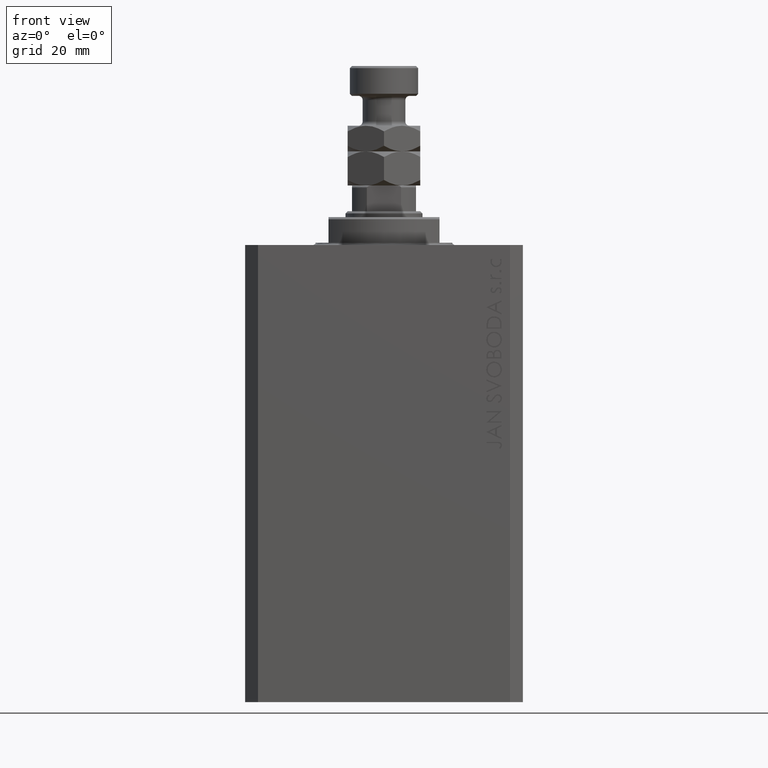
[diagram: clean part render]
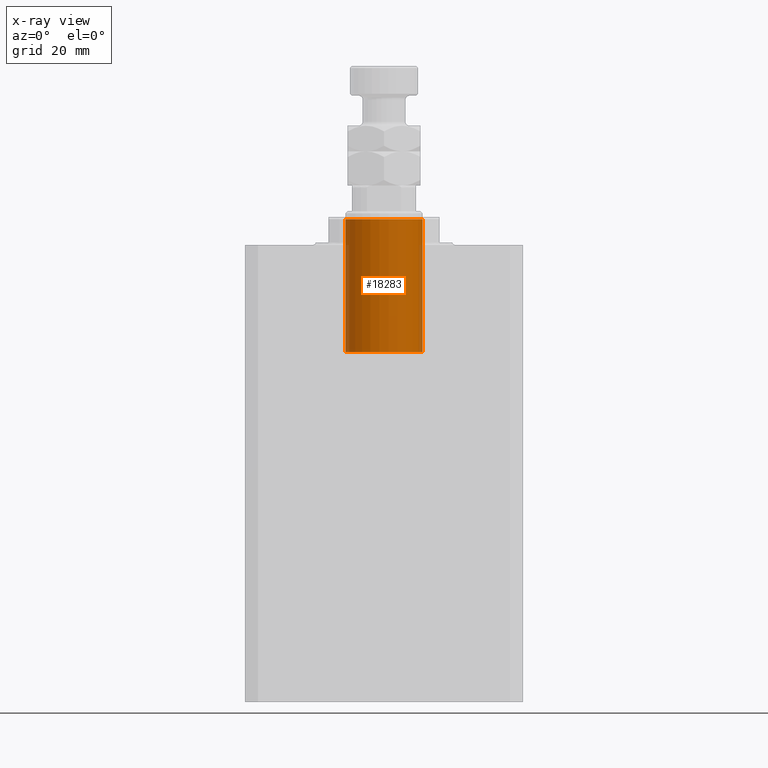
[diagram: x-ray — body ghosted, one internal face saturated and labeled with its STEP entity id]
A machine part, front view, then the same camera in x-ray: the body is ghosted and one INTERNAL B-rep face — a face not visible from any outside direction — is saturated and labeled: STEP entity #18283.
In plain terms, the highlighted cylindrical surface (partial cylindrical patch) has radius 9 mm, axis along (0, -0, 1).
Its self-contained STEP definition (entity closure, byte-faithful):
#1930 = CARTESIAN_POINT ( 'NONE',  ( -9.000000000000000000, 0.000000000000000000, 25.10000000000000497 ) ) ;
#2342 = LINE ( 'NONE', #20183, #23749 ) ;
#4363 = CARTESIAN_POINT ( 'NONE',  ( 9.000000000000000000, 1.102182119232617714E-15, -6.000000000000001776 ) ) ;
#4534 = CARTESIAN_POINT ( 'NONE',  ( 0.000000000000000000, 0.000000000000000000, 25.10000000000000497 ) ) ;
#5335 = DIRECTION ( 'NONE',  ( -0.000000000000000000, -0.000000000000000000, -1.000000000000000000 ) ) ;
#6447 = EDGE_CURVE ( 'NONE', #48462, #33000, #34705, .T. ) ;
#7400 = CARTESIAN_POINT ( 'NONE',  ( 0.000000000000000000, 0.000000000000000000, 25.10000000000000497 ) ) ;
#12711 = AXIS2_PLACEMENT_3D ( 'NONE', #7400, #29918, #30146 ) ;
#12918 = FACE_OUTER_BOUND ( 'NONE', #34016, .T. ) ;
#16306 = ORIENTED_EDGE ( 'NONE', *, *, #6447, .T. ) ;
#18283 = ADVANCED_FACE ( 'NONE', ( #12918 ), #34952, .F. ) ;
#20183 = CARTESIAN_POINT ( 'NONE',  ( -9.000000000000000000, 0.000000000000000000, 25.10000000000000497 ) ) ;
#21200 = DIRECTION ( 'NONE',  ( 0.000000000000000000, 0.000000000000000000, -1.000000000000000000 ) ) ;
#22115 = EDGE_CURVE ( 'NONE', #43466, #34224, #31671, .T. ) ;
#22475 = EDGE_CURVE ( 'NONE', #34224, #33000, #2342, .T. ) ;
#23749 = VECTOR ( 'NONE', #5335, 1000.000000000000000 ) ;
#27638 = DIRECTION ( 'NONE',  ( -0.000000000000000000, -0.000000000000000000, -1.000000000000000000 ) ) ;
#27650 = ORIENTED_EDGE ( 'NONE', *, *, #44912, .T. ) ;
#28863 = DIRECTION ( 'NONE',  ( -1.000000000000000000, 0.000000000000000000, 0.000000000000000000 ) ) ;
#29918 = DIRECTION ( 'NONE',  ( 0.000000000000000000, 0.000000000000000000, -1.000000000000000000 ) ) ;
#30146 = DIRECTION ( 'NONE',  ( -1.000000000000000000, 0.000000000000000000, 0.000000000000000000 ) ) ;
#30492 = CARTESIAN_POINT ( 'NONE',  ( -9.000000000000000000, 0.000000000000000000, -6.000000000000001776 ) ) ;
#30612 = LINE ( 'NONE', #31091, #37513 ) ;
#31091 = CARTESIAN_POINT ( 'NONE',  ( 9.000000000000000000, 1.102182119232617714E-15, 25.10000000000000497 ) ) ;
#31245 = DIRECTION ( 'NONE',  ( -0.000000000000000000, -0.000000000000000000, -1.000000000000000000 ) ) ;
#31671 = CIRCLE ( 'NONE', #12711, 9.000000000000000000 ) ;
#31734 = DIRECTION ( 'NONE',  ( -1.000000000000000000, 0.000000000000000000, 0.000000000000000000 ) ) ;
#32085 = CARTESIAN_POINT ( 'NONE',  ( 0.000000000000000000, 0.000000000000000000, -6.000000000000001776 ) ) ;
#33000 = VERTEX_POINT ( 'NONE', #30492 ) ;
#33106 = ORIENTED_EDGE ( 'NONE', *, *, #22115, .F. ) ;
#33503 = AXIS2_PLACEMENT_3D ( 'NONE', #4534, #31245, #31734 ) ;
#34016 = EDGE_LOOP ( 'NONE', ( #33106, #27650, #16306, #46416 ) ) ;
#34224 = VERTEX_POINT ( 'NONE', #1930 ) ;
#34705 = CIRCLE ( 'NONE', #42620, 9.000000000000000000 ) ;
#34952 = CYLINDRICAL_SURFACE ( 'NONE', #33503, 9.000000000000000000 ) ;
#37513 = VECTOR ( 'NONE', #27638, 1000.000000000000000 ) ;
#40121 = CARTESIAN_POINT ( 'NONE',  ( 9.000000000000000000, 1.102182119232617714E-15, 25.10000000000000497 ) ) ;
#42620 = AXIS2_PLACEMENT_3D ( 'NONE', #32085, #21200, #28863 ) ;
#43466 = VERTEX_POINT ( 'NONE', #40121 ) ;
#44912 = EDGE_CURVE ( 'NONE', #43466, #48462, #30612, .T. ) ;
#46416 = ORIENTED_EDGE ( 'NONE', *, *, #22475, .F. ) ;
#48462 = VERTEX_POINT ( 'NONE', #4363 ) ;